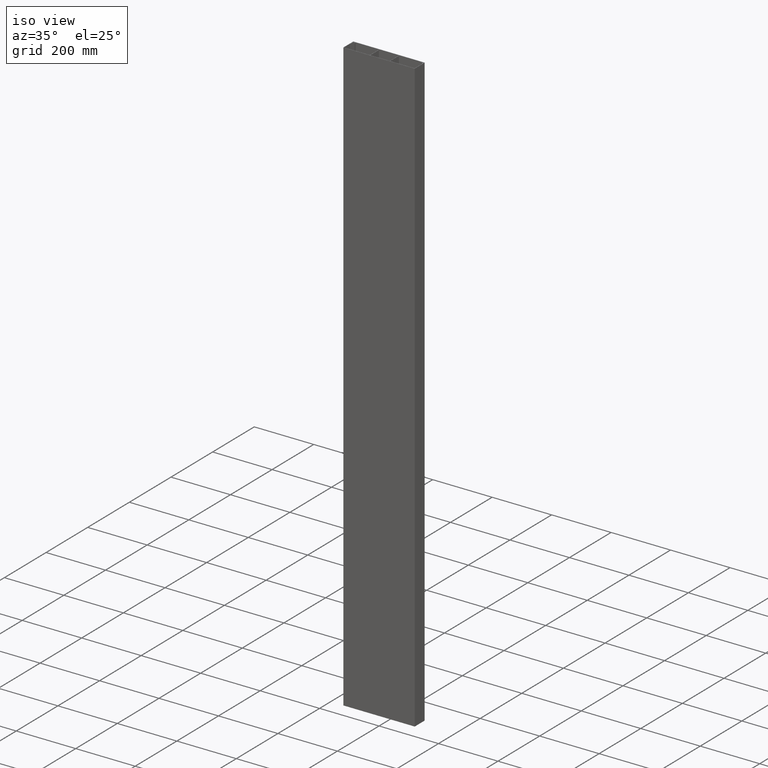
[diagram: clean part render]
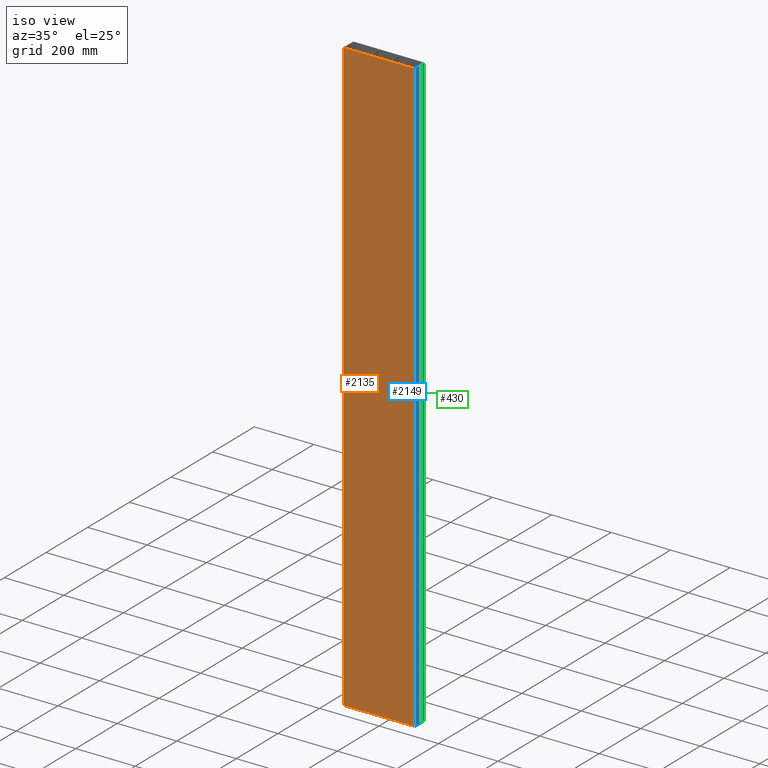
[diagram: same view with three faces highlighted in distinct colors, each labeled with its STEP entity id]
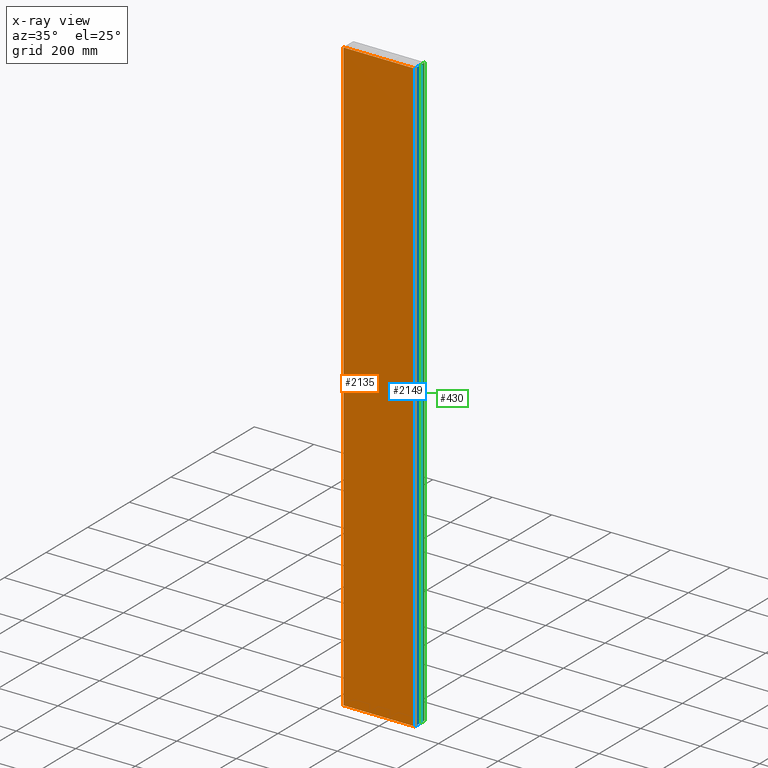
[diagram: x-ray of the same camera — body ghosted, the three highlighted faces saturated]
A machine part, iso view with three faces highlighted in distinct colors.
The next image is the same camera in x-ray (body ghosted, the three faces saturated) — at least one of them is partly hidden behind the body in this view.
Their STEP definitions:

[orange] entity #2135 — the highlighted planar face has unit normal (0, -1, 0).
#1479=DIRECTION('',(1.E0,0.E0,0.E0));
#1480=VECTOR('',#1479,2.4E2);
#1481=CARTESIAN_POINT('',(-1.2E2,0.E0,0.E0));
#1482=LINE('',#1481,#1480);
#1551=DIRECTION('',(0.E0,0.E0,-1.E0));
#1552=VECTOR('',#1551,2.E3);
#1553=CARTESIAN_POINT('',(-1.2E2,0.E0,0.E0));
#1554=LINE('',#1553,#1552);
#1555=DIRECTION('',(0.E0,0.E0,-1.E0));
#1556=VECTOR('',#1555,2.E3);
#1557=CARTESIAN_POINT('',(1.2E2,0.E0,0.E0));
#1558=LINE('',#1557,#1556);
#1663=DIRECTION('',(1.E0,0.E0,0.E0));
#1664=VECTOR('',#1663,2.4E2);
#1665=CARTESIAN_POINT('',(-1.2E2,0.E0,-2.E3));
#1666=LINE('',#1665,#1664);
#1819=CARTESIAN_POINT('',(-1.2E2,0.E0,0.E0));
#1820=CARTESIAN_POINT('',(1.2E2,0.E0,0.E0));
#1821=VERTEX_POINT('',#1819);
#1822=VERTEX_POINT('',#1820);
#1843=CARTESIAN_POINT('',(-1.2E2,0.E0,-2.E3));
#1844=CARTESIAN_POINT('',(1.2E2,0.E0,-2.E3));
#1845=VERTEX_POINT('',#1843);
#1846=VERTEX_POINT('',#1844);
#2122=CARTESIAN_POINT('',(-1.2E2,0.E0,0.E0));
#2123=DIRECTION('',(0.E0,-1.E0,0.E0));
#2124=DIRECTION('',(1.E0,0.E0,0.E0));
#2125=AXIS2_PLACEMENT_3D('',#2122,#2123,#2124);
#2126=PLANE('',#2125);
#2127=ORIENTED_EDGE('',*,*,#1974,.T.);
#2129=ORIENTED_EDGE('',*,*,#2128,.T.);
#2131=ORIENTED_EDGE('',*,*,#2130,.F.);
#2132=ORIENTED_EDGE('',*,*,#2114,.F.);
#2133=EDGE_LOOP('',(#2127,#2129,#2131,#2132));
#2134=FACE_OUTER_BOUND('',#2133,.F.);
#1974=EDGE_CURVE('',#1821,#1822,#1482,.T.);
#2114=EDGE_CURVE('',#1821,#1845,#1554,.T.);
#2128=EDGE_CURVE('',#1822,#1846,#1558,.T.);
#2130=EDGE_CURVE('',#1845,#1846,#1666,.T.);
#2135=ADVANCED_FACE('',(#2134),#2126,.T.);

[blue] entity #2149 — the highlighted planar face has unit normal (1, 0, 0).
#1475=DIRECTION('',(0.E0,1.E0,0.E0));
#1476=VECTOR('',#1475,2.99028E1);
#1477=CARTESIAN_POINT('',(1.2E2,0.E0,0.E0));
#1478=LINE('',#1477,#1476);
#1555=DIRECTION('',(0.E0,0.E0,-1.E0));
#1556=VECTOR('',#1555,2.E3);
#1557=CARTESIAN_POINT('',(1.2E2,0.E0,0.E0));
#1558=LINE('',#1557,#1556);
#1559=DIRECTION('',(0.E0,0.E0,-1.E0));
#1560=VECTOR('',#1559,2.E3);
#1561=CARTESIAN_POINT('',(1.2E2,2.99028E1,0.E0));
#1562=LINE('',#1561,#1560);
#1667=DIRECTION('',(0.E0,1.E0,0.E0));
#1668=VECTOR('',#1667,2.99028E1);
#1669=CARTESIAN_POINT('',(1.2E2,0.E0,-2.E3));
#1670=LINE('',#1669,#1668);
#1820=CARTESIAN_POINT('',(1.2E2,0.E0,0.E0));
#1822=VERTEX_POINT('',#1820);
#1823=CARTESIAN_POINT('',(1.2E2,2.99028E1,0.E0));
#1824=VERTEX_POINT('',#1823);
#1844=CARTESIAN_POINT('',(1.2E2,0.E0,-2.E3));
#1846=VERTEX_POINT('',#1844);
#1847=CARTESIAN_POINT('',(1.2E2,2.99028E1,-2.E3));
#1848=VERTEX_POINT('',#1847);
#2136=CARTESIAN_POINT('',(1.2E2,0.E0,0.E0));
#2137=DIRECTION('',(1.E0,0.E0,0.E0));
#2138=DIRECTION('',(0.E0,1.E0,0.E0));
#2139=AXIS2_PLACEMENT_3D('',#2136,#2137,#2138);
#2140=PLANE('',#2139);
#2141=ORIENTED_EDGE('',*,*,#1972,.T.);
#2143=ORIENTED_EDGE('',*,*,#2142,.T.);
#2145=ORIENTED_EDGE('',*,*,#2144,.F.);
#2146=ORIENTED_EDGE('',*,*,#2128,.F.);
#2147=EDGE_LOOP('',(#2141,#2143,#2145,#2146));
#2148=FACE_OUTER_BOUND('',#2147,.F.);
#1972=EDGE_CURVE('',#1822,#1824,#1478,.T.);
#2128=EDGE_CURVE('',#1822,#1846,#1558,.T.);
#2142=EDGE_CURVE('',#1824,#1848,#1562,.T.);
#2144=EDGE_CURVE('',#1846,#1848,#1670,.T.);
#2149=ADVANCED_FACE('',(#2148),#2140,.T.);

[green] entity #430 — the highlighted planar face has unit normal (1, 0, 0).
#264=DIRECTION('',(0.E0,1.E0,0.E0));
#265=VECTOR('',#264,1.785E1);
#266=CARTESIAN_POINT('',(1.2E2,2.99028E1,0.E0));
#267=LINE('',#266,#265);
#296=DIRECTION('',(0.E0,0.E0,-1.E0));
#297=VECTOR('',#296,2.E3);
#298=CARTESIAN_POINT('',(1.2E2,2.99028E1,0.E0));
#299=LINE('',#298,#297);
#300=DIRECTION('',(0.E0,0.E0,-1.E0));
#301=VECTOR('',#300,2.E3);
#302=CARTESIAN_POINT('',(1.2E2,4.77528E1,0.E0));
#303=LINE('',#302,#301);
#328=DIRECTION('',(0.E0,1.E0,0.E0));
#329=VECTOR('',#328,1.785E1);
#330=CARTESIAN_POINT('',(1.2E2,2.99028E1,-2.E3));
#331=LINE('',#330,#329);
#360=CARTESIAN_POINT('',(1.2E2,2.99028E1,0.E0));
#361=CARTESIAN_POINT('',(1.2E2,4.77528E1,0.E0));
#362=VERTEX_POINT('',#360);
#363=VERTEX_POINT('',#361);
#372=CARTESIAN_POINT('',(1.2E2,2.99028E1,-2.E3));
#373=CARTESIAN_POINT('',(1.2E2,4.77528E1,-2.E3));
#374=VERTEX_POINT('',#372);
#375=VERTEX_POINT('',#373);
#416=CARTESIAN_POINT('',(1.2E2,2.99028E1,0.E0));
#417=DIRECTION('',(1.E0,0.E0,0.E0));
#418=DIRECTION('',(0.E0,1.E0,0.E0));
#419=AXIS2_PLACEMENT_3D('',#416,#417,#418);
#420=PLANE('',#419);
#421=ORIENTED_EDGE('',*,*,#397,.T.);
#423=ORIENTED_EDGE('',*,*,#422,.T.);
#425=ORIENTED_EDGE('',*,*,#424,.F.);
#427=ORIENTED_EDGE('',*,*,#426,.F.);
#428=EDGE_LOOP('',(#421,#423,#425,#427));
#429=FACE_OUTER_BOUND('',#428,.F.);
#397=EDGE_CURVE('',#362,#363,#267,.T.);
#422=EDGE_CURVE('',#363,#375,#303,.T.);
#424=EDGE_CURVE('',#374,#375,#331,.T.);
#426=EDGE_CURVE('',#362,#374,#299,.T.);
#430=ADVANCED_FACE('',(#429),#420,.T.);